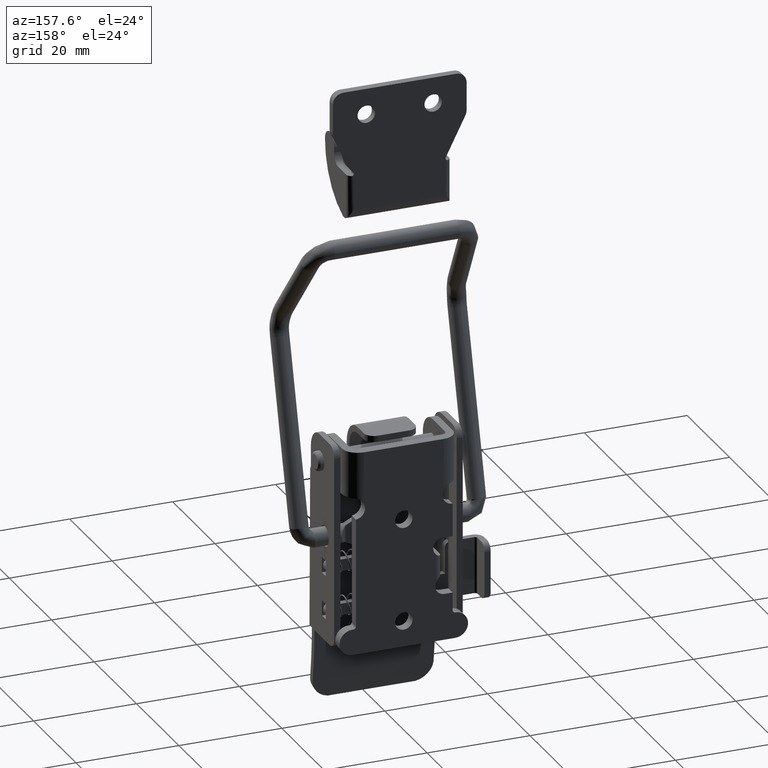
[diagram: clean part render]
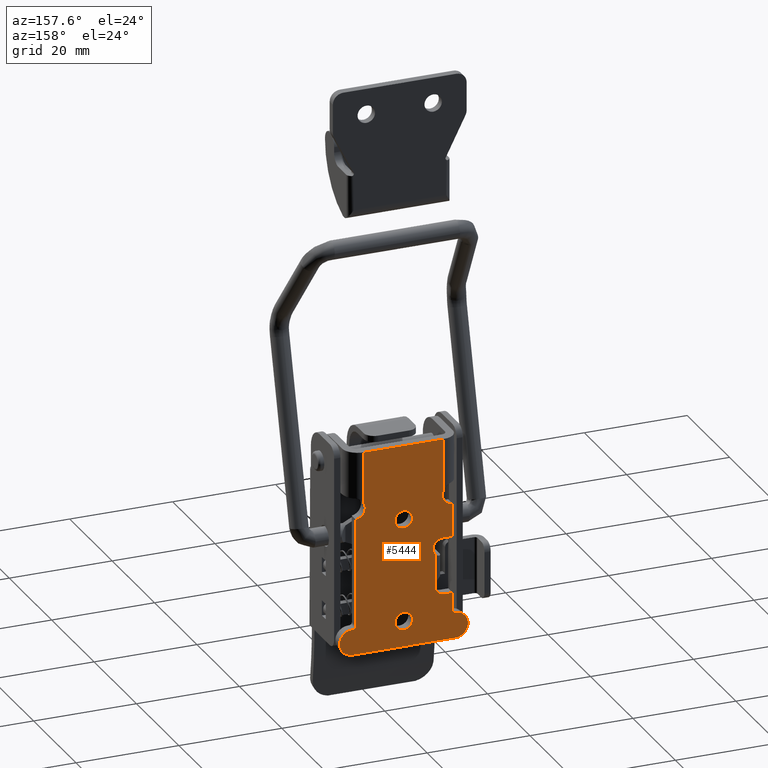
[diagram: same view with one face highlighted and labeled with its STEP entity id]
A machine part, auxiliary view. The second image highlights one B-rep face of the part: STEP entity #5444.
In plain terms, the highlighted planar face has unit normal (0, 1, 0).
Its self-contained STEP definition (entity closure, byte-faithful):
#258 = EDGE_LOOP ( 'NONE', ( #15723, #2372, #15290, #11829, #7003, #16375, #12962, #5738, #303, #9056, #11546, #12934, #14788, #7423, #12171, #6973, #10504, #13125, #8074, #8367, #8133 ) ) ;
#303 = ORIENTED_EDGE ( 'NONE', *, *, #4090, .T. ) ;
#321 = VECTOR ( 'NONE', #12292, 1000.000000000000000 ) ;
#404 = DIRECTION ( 'NONE',  ( -1.000000000000000000, 0.0000000000000000000, 0.0000000000000000000 ) ) ;
#516 = DIRECTION ( 'NONE',  ( 0.0000000000000000000, 1.000000000000000000, 0.0000000000000000000 ) ) ;
#591 = CARTESIAN_POINT ( 'NONE',  ( -7.750000000000000000, 9.000000000000000000, 4.500000000000000000 ) ) ;
#599 = EDGE_CURVE ( 'NONE', #13487, #13529, #8860, .T. ) ;
#777 = ORIENTED_EDGE ( 'NONE', *, *, #7571, .F. ) ;
#825 = VECTOR ( 'NONE', #13203, 1000.000000000000000 ) ;
#839 = DIRECTION ( 'NONE',  ( 0.0000000000000000000, 1.000000000000000000, 0.0000000000000000000 ) ) ;
#971 = AXIS2_PLACEMENT_3D ( 'NONE', #2424, #1021, #9356 ) ;
#995 = CARTESIAN_POINT ( 'NONE',  ( 9.300161999972559100, 8.999999999986130200, -8.489016763633671300 ) ) ;
#1008 = CARTESIAN_POINT ( 'NONE',  ( -6.200000020783909900, 9.000000000000000000, -18.50000000010184900 ) ) ;
#1021 = DIRECTION ( 'NONE',  ( 0.0000000000000000000, 1.000000000000000000, 0.0000000000000000000 ) ) ;
#1070 = B_SPLINE_CURVE_WITH_KNOTS ( 'NONE', 3,
 ( #4165, #5547, #15322, #6946 ),
 .UNSPECIFIED., .F., .F.,
 ( 4, 4 ),
 ( 0.0000000000000000000, 1.000000000000000000 ),
 .UNSPECIFIED. ) ;
#1621 = DIRECTION ( 'NONE',  ( -0.0000000000000000000, -1.000000000000000000, -0.0000000000000000000 ) ) ;
#1726 = FACE_OUTER_BOUND ( 'NONE', #258, .T. ) ;
#1894 = CIRCLE ( 'NONE', #7918, 1.700000000000000200 ) ;
#2155 = EDGE_CURVE ( 'NONE', #5481, #15541, #6852, .T. ) ;
#2372 = ORIENTED_EDGE ( 'NONE', *, *, #14817, .T. ) ;
#2424 = CARTESIAN_POINT ( 'NONE',  ( 0.0000000000000000000, 8.999999999986130200, -10.00000000010502000 ) ) ;
#2443 = EDGE_CURVE ( 'NONE', #13858, #11250, #7925, .T. ) ;
#2546 = CARTESIAN_POINT ( 'NONE',  ( -9.500000000007059200, 9.000000000000000000, 4.500000001559300200 ) ) ;
#2698 = DIRECTION ( 'NONE',  ( 0.0000000000000000000, 0.0000000000000000000, 1.000000000000000000 ) ) ;
#2726 = VECTOR ( 'NONE', #10436, 1000.000000000000000 ) ;
#2898 = CARTESIAN_POINT ( 'NONE',  ( 2.081899558550500000E-016, 8.999999999986130200, -8.300000000105020700 ) ) ;
#3076 = EDGE_LOOP ( 'NONE', ( #13950, #7886 ) ) ;
#3143 = VERTEX_POINT ( 'NONE', #10702 ) ;
#3243 = CARTESIAN_POINT ( 'NONE',  ( 9.300161999992949900, 9.000000000000000000, 4.500000001536349700 ) ) ;
#3257 = CARTESIAN_POINT ( 'NONE',  ( 0.0000000000000000000, 8.999999999986130200, -30.00000000010499700 ) ) ;
#3364 = LINE ( 'NONE', #3243, #9022 ) ;
#3470 = DIRECTION ( 'NONE',  ( 0.0000000000000000000, -1.000000000000000000, 0.0000000000000000000 ) ) ;
#3491 = EDGE_CURVE ( 'NONE', #10057, #15278, #14469, .T. ) ;
#3686 = VERTEX_POINT ( 'NONE', #11069 ) ;
#3753 = CARTESIAN_POINT ( 'NONE',  ( 9.999999999931018700, 8.999999999986130200, -34.99999955912059600 ) ) ;
#3864 = CARTESIAN_POINT ( 'NONE',  ( -7.757142942389975800, 9.000000000000000000, -5.500000000000000900 ) ) ;
#4023 = LINE ( 'NONE', #2546, #321 ) ;
#4035 = CARTESIAN_POINT ( 'NONE',  ( 989.2500000000000000, 9.000000000000000000, 4.500000000000000000 ) ) ;
#4037 = VERTEX_POINT ( 'NONE', #13011 ) ;
#4050 = CARTESIAN_POINT ( 'NONE',  ( 0.0000000000000000000, 8.999999999986130200, -11.70000000010502100 ) ) ;
#4090 = EDGE_CURVE ( 'NONE', #10644, #3143, #17760, .T. ) ;
#4165 = CARTESIAN_POINT ( 'NONE',  ( 7.750000000000000000, 9.000000000000000000, -5.500000000000000000 ) ) ;
#4263 = AXIS2_PLACEMENT_3D ( 'NONE', #11827, #3470, #13232 ) ;
#4538 = CARTESIAN_POINT ( 'NONE',  ( 0.0000000000000000000, 8.999999999986130200, -30.00000000010499700 ) ) ;
#4579 = CARTESIAN_POINT ( 'NONE',  ( 9.800161999939650300, 8.999999999986130200, -29.49999955912050000 ) ) ;
#4633 = DIRECTION ( 'NONE',  ( 0.0000000000000000000, 0.0000000000000000000, 1.000000000000000000 ) ) ;
#4688 = VERTEX_POINT ( 'NONE', #17529 ) ;
#4735 = CIRCLE ( 'NONE', #8951, 0.5000000000000004400 ) ;
#4738 = EDGE_CURVE ( 'NONE', #4037, #15052, #13859, .T. ) ;
#4839 = CARTESIAN_POINT ( 'NONE',  ( -9.509999982024339700, 8.999999999986130200, -6.490000000000000200 ) ) ;
#4904 = DIRECTION ( 'NONE',  ( 0.0000000000000000000, 0.0000000000000000000, 1.000000000000000000 ) ) ;
#5027 = EDGE_CURVE ( 'NONE', #3686, #5481, #4735, .T. ) ;
#5145 = VERTEX_POINT ( 'NONE', #13128 ) ;
#5166 = VERTEX_POINT ( 'NONE', #10614 ) ;
#5239 = VERTEX_POINT ( 'NONE', #995 ) ;
#5444 = ADVANCED_FACE ( 'NONE', ( #1726, #16084, #12388 ), #17978, .T. ) ;
#5479 = CARTESIAN_POINT ( 'NONE',  ( 9.800161999938829600, 9.000000000000000000, -29.99999955912050000 ) ) ;
#5481 = VERTEX_POINT ( 'NONE', #5479 ) ;
#5547 = CARTESIAN_POINT ( 'NONE',  ( 7.753571471190268100, 9.000000000000000000, -5.500000000000000900 ) ) ;
#5564 = CIRCLE ( 'NONE', #6041, 1.700000000000000200 ) ;
#5738 = ORIENTED_EDGE ( 'NONE', *, *, #9807, .T. ) ;
#5913 = DIRECTION ( 'NONE',  ( 0.0000000000000000000, 0.0000000000000000000, 1.000000000000000000 ) ) ;
#5958 = CIRCLE ( 'NONE', #9265, 2.499999999999915600 ) ;
#5959 = DIRECTION ( 'NONE',  ( 0.0000000000000000000, 0.0000000000000000000, 1.000000000000000000 ) ) ;
#6041 = AXIS2_PLACEMENT_3D ( 'NONE', #8854, #516, #10254 ) ;
#6091 = DIRECTION ( 'NONE',  ( 0.0000000000000000000, 1.000000000000000000, 0.0000000000000000000 ) ) ;
#6233 = DIRECTION ( 'NONE',  ( 0.0000000000000000000, 0.0000000000000000000, 1.000000000000000000 ) ) ;
#6234 = CARTESIAN_POINT ( 'NONE',  ( 9.509999982024339700, 8.999999999986130200, -6.490000000000000200 ) ) ;
#6408 = EDGE_CURVE ( 'NONE', #11215, #4688, #14761, .T. ) ;
#6456 = VERTEX_POINT ( 'NONE', #591 ) ;
#6647 = CARTESIAN_POINT ( 'NONE',  ( -7.753571471208993600, 9.000000000000000000, -5.500000000000000900 ) ) ;
#6684 = VECTOR ( 'NONE', #404, 1000.000000000000000 ) ;
#6814 = DIRECTION ( 'NONE',  ( 0.0000000000000000000, 1.000000000000000000, 0.0000000000000000000 ) ) ;
#6852 = LINE ( 'NONE', #8726, #9711 ) ;
#6946 = CARTESIAN_POINT ( 'NONE',  ( 7.760714413570750200, 8.999990433414650300, -5.500000000000000000 ) ) ;
#6973 = ORIENTED_EDGE ( 'NONE', *, *, #12975, .T. ) ;
#7003 = ORIENTED_EDGE ( 'NONE', *, *, #5027, .T. ) ;
#7200 = LINE ( 'NONE', #16064, #17885 ) ;
#7201 = CARTESIAN_POINT ( 'NONE',  ( 7.750000000000000000, 9.000000000000000000, -4.499999559121909500 ) ) ;
#7332 = EDGE_CURVE ( 'NONE', #10057, #5166, #8192, .T. ) ;
#7423 = ORIENTED_EDGE ( 'NONE', *, *, #3491, .T. ) ;
#7502 = VECTOR ( 'NONE', #8604, 1000.000000000000000 ) ;
#7544 = CARTESIAN_POINT ( 'NONE',  ( -9.500000000037429600, 8.999999999986130200, -14.92000000010181900 ) ) ;
#7563 = EDGE_CURVE ( 'NONE', #4688, #11215, #1894, .T. ) ;
#7571 = EDGE_CURVE ( 'NONE', #13529, #13487, #5564, .T. ) ;
#7643 = DIRECTION ( 'NONE',  ( 0.0000000000000000000, 0.0000000000000000000, 1.000000000000000000 ) ) ;
#7691 = CARTESIAN_POINT ( 'NONE',  ( 989.2500000000000000, 9.000000000000000000, 4.500000000000000000 ) ) ;
#7862 = DIRECTION ( 'NONE',  ( 0.0000000000000000000, 1.000000000000000000, 0.0000000000000000000 ) ) ;
#7886 = ORIENTED_EDGE ( 'NONE', *, *, #6408, .F. ) ;
#7918 = AXIS2_PLACEMENT_3D ( 'NONE', #3257, #13003, #4633 ) ;
#7925 = LINE ( 'NONE', #7201, #7502 ) ;
#7928 = CIRCLE ( 'NONE', #15664, 2.010000000000000700 ) ;
#8074 = ORIENTED_EDGE ( 'NONE', *, *, #4738, .T. ) ;
#8133 = ORIENTED_EDGE ( 'NONE', *, *, #13312, .F. ) ;
#8192 = CIRCLE ( 'NONE', #13923, 1.770000000000000700 ) ;
#8286 = VERTEX_POINT ( 'NONE', #10784 ) ;
#8367 = ORIENTED_EDGE ( 'NONE', *, *, #9148, .T. ) ;
#8587 = EDGE_CURVE ( 'NONE', #4037, #13498, #7928, .T. ) ;
#8592 = AXIS2_PLACEMENT_3D ( 'NONE', #4035, #6814, #2698 ) ;
#8604 = DIRECTION ( 'NONE',  ( -0.0000000000000000000, -0.0000000000000000000, -1.000000000000000000 ) ) ;
#8726 = CARTESIAN_POINT ( 'NONE',  ( 989.2499999999449800, 9.000000000000000000, -29.99999956066944800 ) ) ;
#8736 = CARTESIAN_POINT ( 'NONE',  ( 989.2500000000000000, 9.000000000000000000, -14.92000000010181900 ) ) ;
#8854 = CARTESIAN_POINT ( 'NONE',  ( 0.0000000000000000000, 8.999999999986130200, -10.00000000010502000 ) ) ;
#8860 = CIRCLE ( 'NONE', #971, 1.700000000000000200 ) ;
#8951 = AXIS2_PLACEMENT_3D ( 'NONE', #4579, #14338, #5959 ) ;
#9022 = VECTOR ( 'NONE', #14375, 1000.000000000000000 ) ;
#9056 = ORIENTED_EDGE ( 'NONE', *, *, #15556, .T. ) ;
#9130 = EDGE_CURVE ( 'NONE', #17716, #13498, #4023, .T. ) ;
#9148 = EDGE_CURVE ( 'NONE', #15052, #6456, #7200, .T. ) ;
#9169 = CARTESIAN_POINT ( 'NONE',  ( -7.859999991026580100, 8.999999999986130200, -24.22999955909010000 ) ) ;
#9221 = CARTESIAN_POINT ( 'NONE',  ( 7.760714413570750200, 8.999990433414650300, -5.500000000000000000 ) ) ;
#9265 = AXIS2_PLACEMENT_3D ( 'NONE', #16221, #7862, #17631 ) ;
#9356 = DIRECTION ( 'NONE',  ( 0.0000000000000000000, 0.0000000000000000000, 1.000000000000000000 ) ) ;
#9690 = EDGE_LOOP ( 'NONE', ( #10102, #777 ) ) ;
#9711 = VECTOR ( 'NONE', #11498, 1000.000000000000000 ) ;
#9796 = VECTOR ( 'NONE', #15988, 1000.000000000000000 ) ;
#9807 = EDGE_CURVE ( 'NONE', #11402, #10644, #16878, .T. ) ;
#9835 = EDGE_CURVE ( 'NONE', #5239, #3686, #3364, .T. ) ;
#9949 = CARTESIAN_POINT ( 'NONE',  ( -10.00000000006034100, 8.999999999986130200, -29.49999955908929600 ) ) ;
#10057 = VERTEX_POINT ( 'NONE', #11171 ) ;
#10102 = ORIENTED_EDGE ( 'NONE', *, *, #599, .F. ) ;
#10115 = CARTESIAN_POINT ( 'NONE',  ( 989.2500000000000000, 9.000000000000000000, -35.00000000000000000 ) ) ;
#10254 = DIRECTION ( 'NONE',  ( 0.0000000000000000000, 0.0000000000000000000, 1.000000000000000000 ) ) ;
#10436 = DIRECTION ( 'NONE',  ( 1.000000000000000000, 0.0000000000000000000, -1.561251121337945100E-012 ) ) ;
#10504 = ORIENTED_EDGE ( 'NONE', *, *, #9130, .T. ) ;
#10572 = DIRECTION ( 'NONE',  ( 0.0000000000000000000, 0.0000000000000000000, 1.000000000000000000 ) ) ;
#10614 = CARTESIAN_POINT ( 'NONE',  ( -7.859999991029379600, 9.000000000000000000, -25.99999955909265000 ) ) ;
#10644 = VERTEX_POINT ( 'NONE', #13191 ) ;
#10650 = EDGE_CURVE ( 'NONE', #8286, #5166, #17536, .T. ) ;
#10702 = CARTESIAN_POINT ( 'NONE',  ( -10.00000000006114000, 8.999999999986130200, -29.99999955908930000 ) ) ;
#10770 = VECTOR ( 'NONE', #13554, 1000.000000000000000 ) ;
#10784 = CARTESIAN_POINT ( 'NONE',  ( -9.500000000054679800, 9.000000000000000000, -25.99999955909009900 ) ) ;
#11069 = CARTESIAN_POINT ( 'NONE',  ( 9.300161999939650300, 9.000000000000000000, -29.49999955911969700 ) ) ;
#11171 = CARTESIAN_POINT ( 'NONE',  ( -6.200000020783909900, 8.999999999986130200, -23.61575197155364600 ) ) ;
#11215 = VERTEX_POINT ( 'NONE', #14245 ) ;
#11250 = VERTEX_POINT ( 'NONE', #15709 ) ;
#11300 = CARTESIAN_POINT ( 'NONE',  ( 9.999999999938868500, 8.999999999986130200, -29.99999955912079800 ) ) ;
#11350 = DIRECTION ( 'NONE',  ( 0.0000000000000000000, 0.0000000000000000000, 1.000000000000000000 ) ) ;
#11402 = VERTEX_POINT ( 'NONE', #3753 ) ;
#11498 = DIRECTION ( 'NONE',  ( 1.000000000000000000, 0.0000000000000000000, -1.581442530518785100E-012 ) ) ;
#11542 = DIRECTION ( 'NONE',  ( -1.000000000000000000, 0.0000000000000000000, 0.0000000000000000000 ) ) ;
#11544 = CARTESIAN_POINT ( 'NONE',  ( -7.750000000028170400, 9.000000000000000000, -5.500000000000000000 ) ) ;
#11546 = ORIENTED_EDGE ( 'NONE', *, *, #11712, .T. ) ;
#11712 = EDGE_CURVE ( 'NONE', #17701, #8286, #13956, .T. ) ;
#11827 = CARTESIAN_POINT ( 'NONE',  ( -7.499999991034799900, 9.000000000000000000, -16.71000000010184600 ) ) ;
#11829 = ORIENTED_EDGE ( 'NONE', *, *, #9835, .T. ) ;
#11878 = CIRCLE ( 'NONE', #4263, 1.790000000000000000 ) ;
#12171 = ORIENTED_EDGE ( 'NONE', *, *, #16818, .T. ) ;
#12292 = DIRECTION ( 'NONE',  ( 1.561251128379125000E-012, 0.0000000000000000000, 1.000000000000000000 ) ) ;
#12388 = FACE_BOUND ( 'NONE', #3076, .T. ) ;
#12617 = CIRCLE ( 'NONE', #12743, 2.010000000000000700 ) ;
#12743 = AXIS2_PLACEMENT_3D ( 'NONE', #6234, #16006, #7643 ) ;
#12746 = EDGE_CURVE ( 'NONE', #5239, #16359, #12617, .T. ) ;
#12934 = ORIENTED_EDGE ( 'NONE', *, *, #10650, .T. ) ;
#12962 = ORIENTED_EDGE ( 'NONE', *, *, #16380, .T. ) ;
#12975 = EDGE_CURVE ( 'NONE', #5145, #17716, #17392, .T. ) ;
#13003 = DIRECTION ( 'NONE',  ( 0.0000000000000000000, 1.000000000000000000, 0.0000000000000000000 ) ) ;
#13011 = CARTESIAN_POINT ( 'NONE',  ( -7.760714413570750200, 8.999990433407710100, -5.500000000000000000 ) ) ;
#13125 = ORIENTED_EDGE ( 'NONE', *, *, #8587, .F. ) ;
#13128 = CARTESIAN_POINT ( 'NONE',  ( -7.499999991034799900, 9.000000000000000000, -14.92000000010181900 ) ) ;
#13191 = CARTESIAN_POINT ( 'NONE',  ( -10.00000000006897900, 8.999999999986130200, -34.99999955908929600 ) ) ;
#13203 = DIRECTION ( 'NONE',  ( -1.000000000000000000, 0.0000000000000000000, 0.0000000000000000000 ) ) ;
#13232 = DIRECTION ( 'NONE',  ( 0.0000000000000000000, 0.0000000000000000000, -1.000000000000000000 ) ) ;
#13311 = CARTESIAN_POINT ( 'NONE',  ( -6.200000020783909900, 9.000000000000000000, -17.94048773971879700 ) ) ;
#13312 = EDGE_CURVE ( 'NONE', #13858, #6456, #15652, .T. ) ;
#13487 = VERTEX_POINT ( 'NONE', #4050 ) ;
#13498 = VERTEX_POINT ( 'NONE', #16535 ) ;
#13529 = VERTEX_POINT ( 'NONE', #2898 ) ;
#13554 = DIRECTION ( 'NONE',  ( 0.0000000000000000000, 0.0000000000000000000, 1.000000000000000000 ) ) ;
#13626 = CARTESIAN_POINT ( 'NONE',  ( -7.760714413570750200, 8.999990433407710100, -5.500000000000000000 ) ) ;
#13858 = VERTEX_POINT ( 'NONE', #17552 ) ;
#13859 = B_SPLINE_CURVE_WITH_KNOTS ( 'NONE', 3,
 ( #13626, #3864, #6647, #16419 ),
 .UNSPECIFIED., .F., .F.,
 ( 4, 4 ),
 ( 0.0000000000000000000, 1.000000000000000000 ),
 .UNSPECIFIED. ) ;
#13923 = AXIS2_PLACEMENT_3D ( 'NONE', #9169, #839, #10572 ) ;
#13950 = ORIENTED_EDGE ( 'NONE', *, *, #7563, .F. ) ;
#13956 = LINE ( 'NONE', #17336, #9796 ) ;
#14245 = CARTESIAN_POINT ( 'NONE',  ( 2.081899558550500000E-016, 8.999999999986130200, -28.30000000010499800 ) ) ;
#14298 = DIRECTION ( 'NONE',  ( 0.0000000000000000000, 1.000000000000000000, 0.0000000000000000000 ) ) ;
#14338 = DIRECTION ( 'NONE',  ( -0.0000000000000000000, -1.000000000000000000, -0.0000000000000000000 ) ) ;
#14375 = DIRECTION ( 'NONE',  ( -1.567786598218855000E-012, 0.0000000000000000000, -1.000000000000000000 ) ) ;
#14461 = CARTESIAN_POINT ( 'NONE',  ( -10.00000000006506100, 8.999999999986130200, -32.49999955908930400 ) ) ;
#14469 = LINE ( 'NONE', #1008, #10770 ) ;
#14500 = CARTESIAN_POINT ( 'NONE',  ( -9.500000000060349900, 9.000000000000000000, -29.49999955909009900 ) ) ;
#14607 = DIRECTION ( 'NONE',  ( 0.0000000000000000000, 1.000000000000000000, 0.0000000000000000000 ) ) ;
#14761 = CIRCLE ( 'NONE', #17396, 1.700000000000000200 ) ;
#14788 = ORIENTED_EDGE ( 'NONE', *, *, #7332, .F. ) ;
#14817 = EDGE_CURVE ( 'NONE', #11250, #16359, #1070, .T. ) ;
#15052 = VERTEX_POINT ( 'NONE', #11544 ) ;
#15278 = VERTEX_POINT ( 'NONE', #13311 ) ;
#15290 = ORIENTED_EDGE ( 'NONE', *, *, #12746, .F. ) ;
#15322 = CARTESIAN_POINT ( 'NONE',  ( 7.757142942380612600, 9.000000000000000000, -5.500000000000000900 ) ) ;
#15541 = VERTEX_POINT ( 'NONE', #11300 ) ;
#15556 = EDGE_CURVE ( 'NONE', #3143, #17701, #16243, .T. ) ;
#15652 = LINE ( 'NONE', #7691, #825 ) ;
#15664 = AXIS2_PLACEMENT_3D ( 'NONE', #4839, #14607, #6233 ) ;
#15709 = CARTESIAN_POINT ( 'NONE',  ( 7.750000000000000000, 9.000000000000000000, -5.500000000000000000 ) ) ;
#15723 = ORIENTED_EDGE ( 'NONE', *, *, #2443, .T. ) ;
#15864 = DIRECTION ( 'NONE',  ( 0.0000000000000000000, 0.0000000000000000000, 1.000000000000000000 ) ) ;
#15981 = CARTESIAN_POINT ( 'NONE',  ( 989.2499999999520200, 9.000000000000000000, -25.99999956064939600 ) ) ;
#15988 = DIRECTION ( 'NONE',  ( 1.561251128379125000E-012, 0.0000000000000000000, 1.000000000000000000 ) ) ;
#16006 = DIRECTION ( 'NONE',  ( 0.0000000000000000000, 1.000000000000000000, 0.0000000000000000000 ) ) ;
#16064 = CARTESIAN_POINT ( 'NONE',  ( -7.750000000000000000, 9.000000000000000000, 4.500000000000000000 ) ) ;
#16084 = FACE_BOUND ( 'NONE', #9690, .T. ) ;
#16221 = CARTESIAN_POINT ( 'NONE',  ( 9.999999999934939200, 8.999999999986130200, -32.49999955912070200 ) ) ;
#16243 = CIRCLE ( 'NONE', #17439, 0.5000000000000004400 ) ;
#16273 = AXIS2_PLACEMENT_3D ( 'NONE', #14461, #6091, #15864 ) ;
#16359 = VERTEX_POINT ( 'NONE', #9221 ) ;
#16375 = ORIENTED_EDGE ( 'NONE', *, *, #2155, .T. ) ;
#16380 = EDGE_CURVE ( 'NONE', #15541, #11402, #5958, .T. ) ;
#16419 = CARTESIAN_POINT ( 'NONE',  ( -7.750000000028170400, 9.000000000000000000, -5.500000000000000000 ) ) ;
#16432 = VECTOR ( 'NONE', #11542, 1000.000000000000000 ) ;
#16535 = CARTESIAN_POINT ( 'NONE',  ( -9.500000000027411000, 8.999999999986130200, -8.499975124313749600 ) ) ;
#16818 = EDGE_CURVE ( 'NONE', #15278, #5145, #11878, .T. ) ;
#16878 = LINE ( 'NONE', #10115, #16432 ) ;
#17336 = CARTESIAN_POINT ( 'NONE',  ( -9.500000000007059200, 9.000000000000000000, 4.500000001559300200 ) ) ;
#17392 = LINE ( 'NONE', #8736, #6684 ) ;
#17396 = AXIS2_PLACEMENT_3D ( 'NONE', #4538, #14298, #5913 ) ;
#17439 = AXIS2_PLACEMENT_3D ( 'NONE', #9949, #1621, #11350 ) ;
#17529 = CARTESIAN_POINT ( 'NONE',  ( 0.0000000000000000000, 8.999999999986130200, -31.70000000010500000 ) ) ;
#17536 = LINE ( 'NONE', #15981, #2726 ) ;
#17552 = CARTESIAN_POINT ( 'NONE',  ( 7.750000000000000000, 9.000000000000000000, 4.500000000000000000 ) ) ;
#17631 = DIRECTION ( 'NONE',  ( 0.0000000000000000000, 0.0000000000000000000, 1.000000000000000000 ) ) ;
#17701 = VERTEX_POINT ( 'NONE', #14500 ) ;
#17716 = VERTEX_POINT ( 'NONE', #7544 ) ;
#17760 = CIRCLE ( 'NONE', #16273, 2.499999999999998700 ) ;
#17885 = VECTOR ( 'NONE', #4904, 1000.000000000000000 ) ;
#17978 = PLANE ( 'NONE',  #8592 ) ;